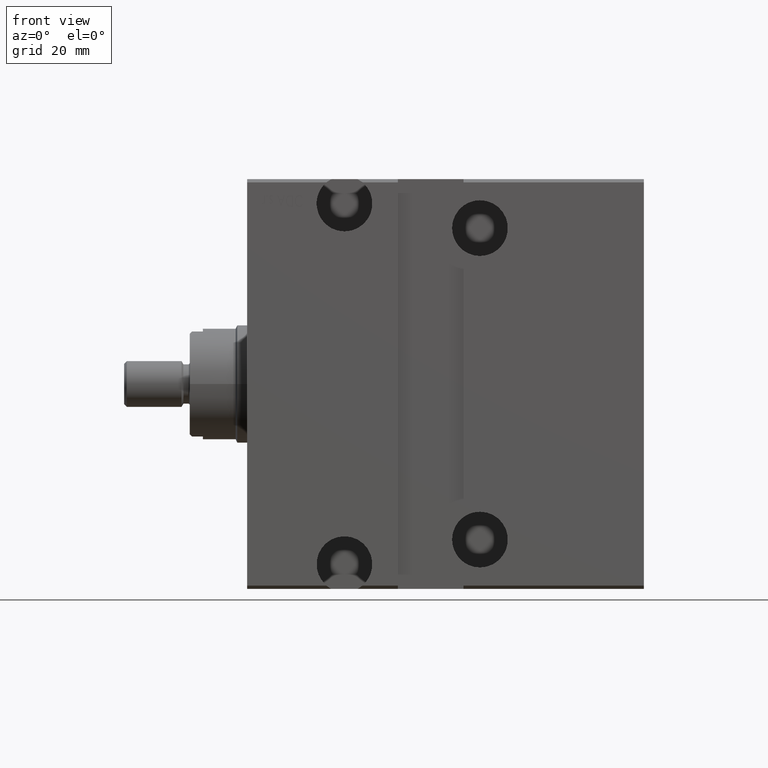
[diagram: clean part render]
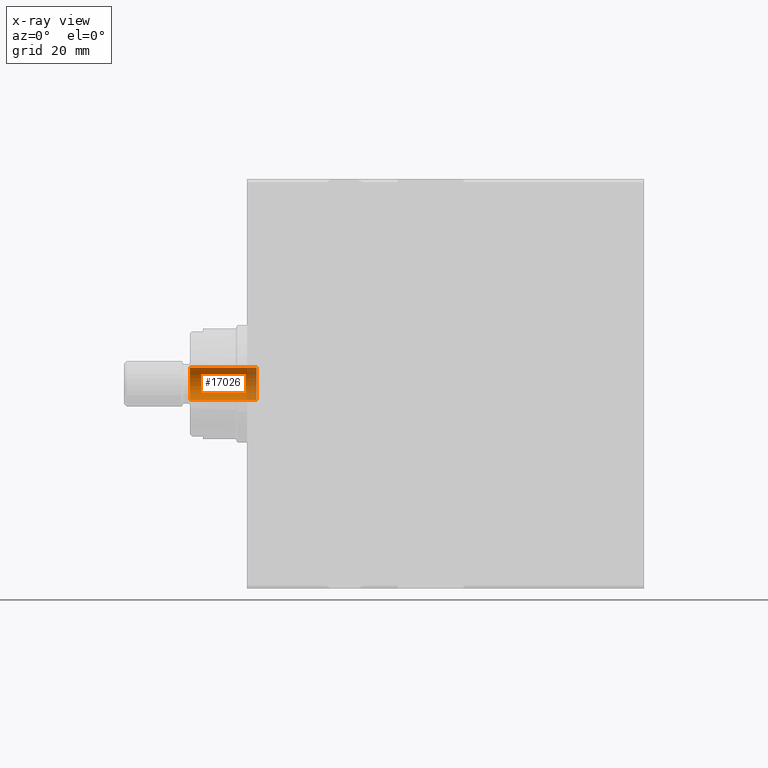
[diagram: x-ray — body ghosted, one internal face saturated and labeled with its STEP entity id]
A machine part, front view, then the same camera in x-ray: the body is ghosted and one INTERNAL B-rep face — a face not visible from any outside direction — is saturated and labeled: STEP entity #17026.
In plain terms, the highlighted cylindrical surface (edge-blend (fillet) strip) has radius 5 mm, axis along (-1, 0, 0).
Its self-contained STEP definition (entity closure, byte-faithful):
#175 = DIRECTION ( 'NONE',  ( -0.000000000000000000, -0.000000000000000000, 1.000000000000000000 ) ) ;
#694 = VECTOR ( 'NONE', #175, 1000.000000000000000 ) ;
#4612 = DIRECTION ( 'NONE',  ( 1.000000000000000000, 0.000000000000000000, 0.000000000000000000 ) ) ;
#5150 = DIRECTION ( 'NONE',  ( 0.000000000000000000, 0.000000000000000000, 1.000000000000000000 ) ) ;
#5213 = CARTESIAN_POINT ( 'NONE',  ( 5.000000000000000000, -1.654023765906828542E-14, 62.09999999999998721 ) ) ;
#5721 = DIRECTION ( 'NONE',  ( 0.000000000000000000, 0.000000000000000000, 1.000000000000000000 ) ) ;
#5919 = VERTEX_POINT ( 'NONE', #12041 ) ;
#6928 = VERTEX_POINT ( 'NONE', #9096 ) ;
#7662 = CARTESIAN_POINT ( 'NONE',  ( -5.000000000000000000, -1.592791425949460968E-14, 82.49999999999998579 ) ) ;
#7806 = CARTESIAN_POINT ( 'NONE',  ( -5.000000000000000000, -1.592791425949460968E-14, 62.09999999999998721 ) ) ;
#8338 = FACE_OUTER_BOUND ( 'NONE', #34901, .T. ) ;
#9096 = CARTESIAN_POINT ( 'NONE',  ( -5.000000000000000000, -1.592791425949460968E-14, 62.09999999999998721 ) ) ;
#9109 = CIRCLE ( 'NONE', #14151, 5.000000000000000000 ) ;
#12041 = CARTESIAN_POINT ( 'NONE',  ( 5.000000000000000000, -1.654023765906828542E-14, 82.49999999999998579 ) ) ;
#12449 = VECTOR ( 'NONE', #37918, 1000.000000000000000 ) ;
#12464 = EDGE_CURVE ( 'NONE', #37341, #5919, #33413, .T. ) ;
#14151 = AXIS2_PLACEMENT_3D ( 'NONE', #20304, #5150, #23450 ) ;
#14770 = CARTESIAN_POINT ( 'NONE',  ( 0.000000000000000000, -1.654023765906828542E-14, 82.49999999999998579 ) ) ;
#15140 = CARTESIAN_POINT ( 'NONE',  ( 5.000000000000000000, -1.654023765906828542E-14, 62.09999999999998721 ) ) ;
#16259 = AXIS2_PLACEMENT_3D ( 'NONE', #14770, #5721, #35623 ) ;
#17026 = ADVANCED_FACE ( 'NONE', ( #8338 ), #20347, .F. ) ;
#17200 = DIRECTION ( 'NONE',  ( -0.000000000000000000, -0.000000000000000000, 1.000000000000000000 ) ) ;
#20158 = CARTESIAN_POINT ( 'NONE',  ( 0.000000000000000000, -1.654023765906828542E-14, 62.09999999999998721 ) ) ;
#20304 = CARTESIAN_POINT ( 'NONE',  ( 0.000000000000000000, -1.654023765906828542E-14, 62.09999999999998721 ) ) ;
#20347 = CYLINDRICAL_SURFACE ( 'NONE', #36104, 5.000000000000000000 ) ;
#21567 = VERTEX_POINT ( 'NONE', #7662 ) ;
#22327 = ORIENTED_EDGE ( 'NONE', *, *, #25808, .T. ) ;
#23450 = DIRECTION ( 'NONE',  ( 1.000000000000000000, 0.000000000000000000, 0.000000000000000000 ) ) ;
#25682 = CIRCLE ( 'NONE', #16259, 5.000000000000000000 ) ;
#25808 = EDGE_CURVE ( 'NONE', #5919, #21567, #25682, .T. ) ;
#28527 = EDGE_CURVE ( 'NONE', #6928, #21567, #28681, .T. ) ;
#28681 = LINE ( 'NONE', #7806, #12449 ) ;
#29522 = ORIENTED_EDGE ( 'NONE', *, *, #28527, .F. ) ;
#32483 = ORIENTED_EDGE ( 'NONE', *, *, #12464, .T. ) ;
#33413 = LINE ( 'NONE', #15140, #694 ) ;
#34901 = EDGE_LOOP ( 'NONE', ( #29522, #35517, #32483, #22327 ) ) ;
#35517 = ORIENTED_EDGE ( 'NONE', *, *, #35669, .F. ) ;
#35623 = DIRECTION ( 'NONE',  ( 1.000000000000000000, 0.000000000000000000, 0.000000000000000000 ) ) ;
#35669 = EDGE_CURVE ( 'NONE', #37341, #6928, #9109, .T. ) ;
#36104 = AXIS2_PLACEMENT_3D ( 'NONE', #20158, #17200, #4612 ) ;
#37341 = VERTEX_POINT ( 'NONE', #5213 ) ;
#37918 = DIRECTION ( 'NONE',  ( -0.000000000000000000, -0.000000000000000000, 1.000000000000000000 ) ) ;